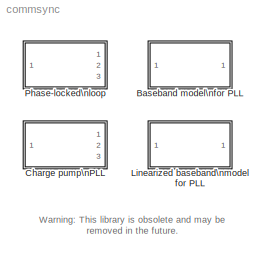
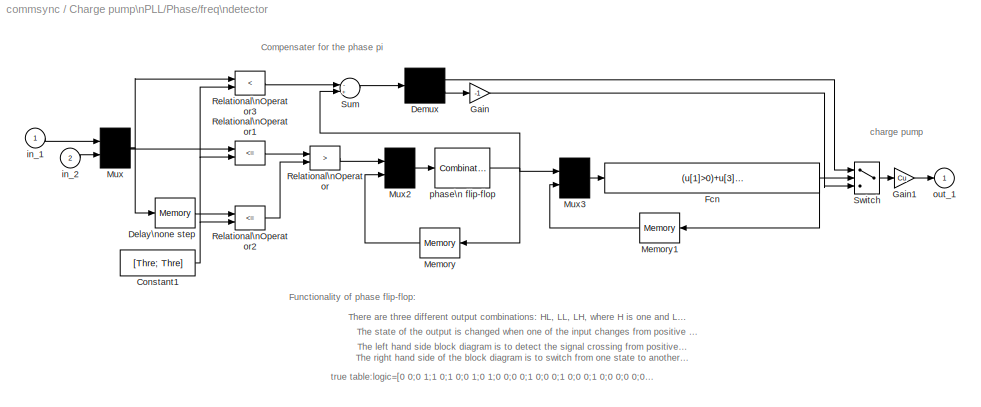
MODEL commsync
KIND library
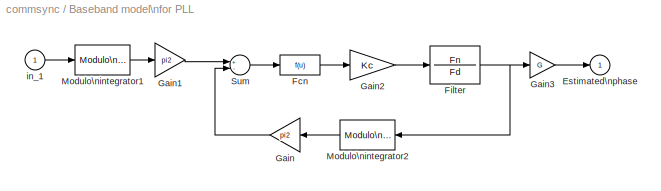
BLOCK [SubSystem] Baseband model\nfor PLL
  MaskCallbackString = |||
  MaskDescription = Output the phase shifting of the input signal from the oscillation frequency.
  MaskDisplay = disp('Baseband\\nPLL')
  MaskEnableString = on,on,on,on
  MaskHelp = this block is used to detect the phase shifting of the input signal. The input to this block is an oscillation signal with possible phase shifting. The block detects the phase shifting value using the PLL technique. Design the lowpass filter to pass the phase changing signal and to eliminate the oscillation signal.
  MaskIconFrame = on
  MaskIconOpaque = on
  MaskIconRotate = none
  MaskIconUnits = autoscale
  MaskInitialization = pi2=2*pi;Kc=Ac/2;
  MaskPromptString = Lowpass filter numerator:|Lowpass filter denominator:|Oscillation amplitude:|Gain at the output:
  MaskStyleString = edit,edit,edit,edit
  MaskToolTipString = on,on,on,on
  MaskTunableValueString = on,on,on,on
  MaskType = Baseband PLL model
  MaskValueString = [3.0002,  0, 40002]|[1, 67.46, 2270.9, 40002]|1|2
  MaskVarAliasString = ,,,
  MaskVariables = Fn=@1;Fd=@2;Ac=@3;G=@4;
  MaskVisibilityString = on,on,on,on
  Ports = [1, 1]
  TreatAsAtomicUnit = off
BLOCK [Outport] Baseband model\nfor PLL/Estimated\nphase
  InitialOutput = 0
BLOCK [Fcn] Baseband model\nfor PLL/Fcn
BLOCK [TransferFcn] Baseband model\nfor PLL/Filter
  Denominator = Fd
  Numerator = Fn
BLOCK [Gain] Baseband model\nfor PLL/Gain
  Gain = pi2
  MaskIconFrame = on
  MaskIconOpaque = on
  MaskIconRotate = none
  MaskIconUnits = autoscale
BLOCK [Gain] Baseband model\nfor PLL/Gain1
  Gain = pi2
BLOCK [Gain] Baseband model\nfor PLL/Gain2
  Gain = Kc
BLOCK [Gain] Baseband model\nfor PLL/Gain3
  Gain = G
BLOCK [Reference] Baseband model\nfor PLL/Modulo\nintegrator1  REF=commutil/Modulo\nintegrator
  Ports = [1, 1]
  SourceBlock = commutil/Modulo\nintegrator
  SourceType = Modulo integrator
  init = 0
  modu = 1
BLOCK [Reference] Baseband model\nfor PLL/Modulo\nintegrator2  REF=commutil/Modulo\nintegrator
  Ports = [1, 1]
  SourceBlock = commutil/Modulo\nintegrator
  SourceType = Modulo integrator
  init = 0
  modu = 1
BLOCK [Sum] Baseband model\nfor PLL/Sum
  Inputs = +-
  Ports = [2, 1]
BLOCK [Inport] Baseband model\nfor PLL/in_1
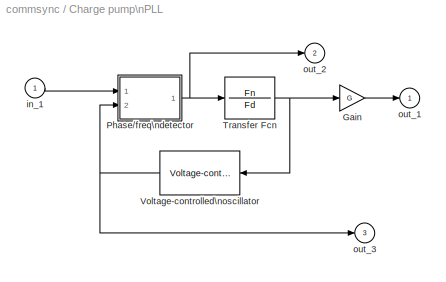
BLOCK [SubSystem] Charge pump\nPLL
  MaskCallbackString = |||||
  MaskDescription = Output the phase shifting signal at 1st port; the detected phase error at 2nd port; VOC output at 3rd port.
  MaskDisplay = disp('Charge\\npump\\nPLL')
  MaskEnableString = on,on,on,on,on,on
  MaskHelp = This block uses a digital charge pump to detect the phase shifting from the oscillation signal. The first output is the detected phase shift. The second output is the detected phase error output from phase detector. The third output is the matching signal for the input. Note a 180 degree phase difference between the input signal and the matching signal.
  MaskIconFrame = on
  MaskIconOpaque = on
  MaskIconRotate = none
  MaskIconUnits = autoscale
  MaskInitialization = Cu=1;
  MaskPromptString = Lowpass filter numerator:|Lowpass filter Denominator:|Oscillation frequency (Hz):|Oscillation Phase (rad):|Oscillation Amplitude:|Gain at the output:
  MaskStyleString = edit,edit,edit,edit,edit,edit
  MaskToolTipString = on,on,on,on,on,on
  MaskTunableValueString = on,on,on,on,on,on
  MaskType = Charge pump PLL
  MaskValueString = [3.0002,  0, 40002]|[1, 67.46, 2270.9, 40002]|100/2/pi|pi|1|3
  MaskVarAliasString = ,,,,,
  MaskVariables = Fn=@1;Fd=@2;Fc=@3;Ph=@4;Ac=@5;G=@6;
  MaskVisibilityString = on,on,on,on,on,on
  Ports = [1, 3]
  TreatAsAtomicUnit = off
BLOCK [Gain] Charge pump\nPLL/Gain
  Gain = G
BLOCK [SubSystem] Charge pump\nPLL/Phase//freq\ndetector
  MaskCallbackString = |
  MaskDescription = Phase detector:
  MaskDisplay = disp('Phase\\nfrequency\\ndetector')
  MaskEnableString = on,on
  MaskIconFrame = on
  MaskIconOpaque = on
  MaskIconRotate = none
  MaskIconUnits = autoscale
  MaskInitialization = Thre=@1;Cu=@2;lo=[0 0;0 1;1 0;1 0;0 1;0 1;0 0;0 0;1 0;0 0;1 0;0 0;1 0;0 0;0 0;0 0];
  MaskPromptString = Cross zero line threshold:|Charge pump current:
  MaskStyleString = edit,edit
  MaskToolTipString = on,on
  MaskTunableValueString = on,on
  MaskType = Phase Detector
  MaskValueString = -sqrt(eps)|Cu
  MaskVarAliasString = ,
  MaskVisibilityString = on,on
  Ports = [2, 1]
  TreatAsAtomicUnit = off
BLOCK [Constant] Charge pump\nPLL/Phase//freq\ndetector/Constant1
  Value = [Thre; Thre]
BLOCK [Memory] Charge pump\nPLL/Phase//freq\ndetector/Delay\none step
BLOCK [Demux] Charge pump\nPLL/Phase//freq\ndetector/Demux
  Outputs = 2
  Ports = [1, 2]
BLOCK [Fcn] Charge pump\nPLL/Phase//freq\ndetector/Fcn
  Expr = (u[1]>0)+u[3]*((u[1]<=0)&&(u[2]<=0))
BLOCK [Gain] Charge pump\nPLL/Phase//freq\ndetector/Gain
  Gain = -1
BLOCK [Gain] Charge pump\nPLL/Phase//freq\ndetector/Gain1
  Gain = Cu
BLOCK [Memory] Charge pump\nPLL/Phase//freq\ndetector/Memory
  MaskIconFrame = on
  MaskIconOpaque = on
  MaskIconRotate = none
  MaskIconUnits = autoscale
BLOCK [Memory] Charge pump\nPLL/Phase//freq\ndetector/Memory1
  MaskIconFrame = on
  MaskIconOpaque = on
  MaskIconRotate = none
  MaskIconUnits = autoscale
BLOCK [Mux] Charge pump\nPLL/Phase//freq\ndetector/Mux
  Inputs = 2
  Ports = [2, 1]
BLOCK [Mux] Charge pump\nPLL/Phase//freq\ndetector/Mux2
  Inputs = [2 2]
  Ports = [2, 1]
BLOCK [Mux] Charge pump\nPLL/Phase//freq\ndetector/Mux3
  Inputs = [2 1]
  Ports = [2, 1]
BLOCK [RelationalOperator] Charge pump\nPLL/Phase//freq\ndetector/Relational\nOperator
  Operator = >
BLOCK [RelationalOperator] Charge pump\nPLL/Phase//freq\ndetector/Relational\nOperator1
  Operator = <=
BLOCK [RelationalOperator] Charge pump\nPLL/Phase//freq\ndetector/Relational\nOperator2
  Operator = <=
BLOCK [RelationalOperator] Charge pump\nPLL/Phase//freq\ndetector/Relational\nOperator3
  Operator = <
BLOCK [Sum] Charge pump\nPLL/Phase//freq\ndetector/Sum
  Inputs = -+
  Ports = [2, 1]
BLOCK [Switch] Charge pump\nPLL/Phase//freq\ndetector/Switch
  Threshold = eps
BLOCK [Inport] Charge pump\nPLL/Phase//freq\ndetector/in_1
BLOCK [Inport] Charge pump\nPLL/Phase//freq\ndetector/in_2
  Port = 2
BLOCK [Outport] Charge pump\nPLL/Phase//freq\ndetector/out_1
  InitialOutput = 0
BLOCK [CombinatorialLogic] Charge pump\nPLL/Phase//freq\ndetector/phase\n flip-flop
  TruthTable = lo
BLOCK [TransferFcn] Charge pump\nPLL/Transfer Fcn
  Denominator = Fd
  Numerator = Fn
BLOCK [Reference] Charge pump\nPLL/Voltage-controlled\noscillator  REF=commutil/Voltage-controlled\noscillator
  Ac = Ac
  Fc = Fc
  Kc = 1
  Ph = Ph
  Ports = [1, 1]
  SourceBlock = commutil/Voltage-controlled\noscillator
  SourceType = Voltage-controlled oscillator
BLOCK [Inport] Charge pump\nPLL/in_1
BLOCK [Outport] Charge pump\nPLL/out_1
  InitialOutput = 0
BLOCK [Outport] Charge pump\nPLL/out_2
  InitialOutput = 0
  Port = 2
BLOCK [Outport] Charge pump\nPLL/out_3
  InitialOutput = 0
  Port = 3
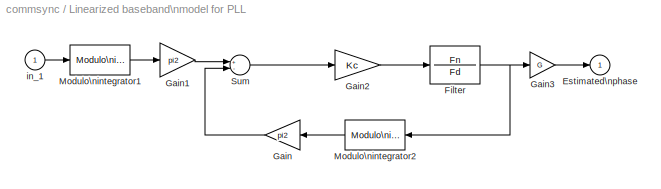
BLOCK [SubSystem] Linearized baseband\nmodel for PLL
  MaskCallbackString = |||
  MaskDescription = Output the phase shifting of the input signal from the oscillation frequency.
  MaskDisplay = disp('Linearized\\nbaseband\\nPLL')
  MaskEnableString = on,on,on,on
  MaskHelp = This block detects the phase shifting of the input signal. The input to this block is an oscillation signal with possible phase shifting. The block detects the phase shifting value using PLL technique. Design the lowpass filter to pass the phase changing signal and to eliminate the oscillation signal.
  MaskIconFrame = on
  MaskIconOpaque = on
  MaskIconRotate = none
  MaskIconUnits = autoscale
  MaskInitialization = pi2=2*pi;Kc=Ac/2;
  MaskPromptString = Lowpass filter numerator:|Lowpass filter denominator:|Oscillation amplitude:|Gain at the output:
  MaskStyleString = edit,edit,edit,edit
  MaskToolTipString = on,on,on,on
  MaskTunableValueString = on,on,on,on
  MaskType = Linearized baseband PLL model
  MaskValueString = [3.0002,  0, 40002]|[1, 67.46, 2270.9, 40002]|1|2
  MaskVarAliasString = ,,,
  MaskVariables = Fn=@1;Fd=@2;Ac=@3;G=@4;
  MaskVisibilityString = on,on,on,on
  Ports = [1, 1]
  TreatAsAtomicUnit = off
BLOCK [Outport] Linearized baseband\nmodel for PLL/Estimated\nphase
  InitialOutput = 0
BLOCK [TransferFcn] Linearized baseband\nmodel for PLL/Filter
  Denominator = Fd
  Numerator = Fn
BLOCK [Gain] Linearized baseband\nmodel for PLL/Gain
  Gain = pi2
  MaskIconFrame = on
  MaskIconOpaque = on
  MaskIconRotate = none
  MaskIconUnits = autoscale
BLOCK [Gain] Linearized baseband\nmodel for PLL/Gain1
  Gain = pi2
BLOCK [Gain] Linearized baseband\nmodel for PLL/Gain2
  Gain = Kc
BLOCK [Gain] Linearized baseband\nmodel for PLL/Gain3
  Gain = G
BLOCK [Reference] Linearized baseband\nmodel for PLL/Modulo\nintegrator1  REF=commutil/Modulo\nintegrator
  Ports = [1, 1]
  SourceBlock = commutil/Modulo\nintegrator
  SourceType = Modulo integrator
  init = 0
  modu = 1
BLOCK [Reference] Linearized baseband\nmodel for PLL/Modulo\nintegrator2  REF=commutil/Modulo\nintegrator
  Ports = [1, 1]
  SourceBlock = commutil/Modulo\nintegrator
  SourceType = Modulo integrator
  init = 0
  modu = 1
BLOCK [Sum] Linearized baseband\nmodel for PLL/Sum
  Inputs = +-
  Ports = [2, 1]
BLOCK [Inport] Linearized baseband\nmodel for PLL/in_1
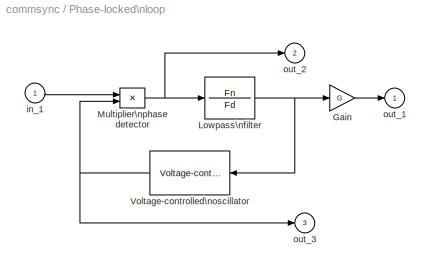
BLOCK [SubSystem] Phase-locked\nloop
  MaskCallbackString = |||||
  MaskDescription = Output the phase shifting signal at 1st port; the detected phase error at 2nd port; VOC output at 3rd port.
  MaskDisplay = disp('PLL')
  MaskEnableString = on,on,on,on,on,on
  MaskHelp = This block detects the phase shifting of the input signal. This block uses a multiplier phase detector. The first output is the detected phase shift. The second output is the detected phase error output from phase detector. The third output is the matching signal for the input. Note a 180 degree phase difference between the input signal and the matching signal.
  MaskIconFrame = on
  MaskIconOpaque = on
  MaskIconRotate = none
  MaskIconUnits = autoscale
  MaskPromptString = Lowpass filter numerator:|Lowpass filter denominator:|Oscillation frequency:|Oscillation Phase:|Oscillation Amplitude:|Gain at the output:
  MaskStyleString = edit,edit,edit,edit,edit,edit
  MaskToolTipString = on,on,on,on,on,on
  MaskTunableValueString = on,on,on,on,on,on
  MaskType = Simple form PLL
  MaskValueString = [3.0002,  0, 40002]|[1, 67.46, 2270.9, 40002]|100/2/pi|pi/2|1|2
  MaskVarAliasString = ,,,,,
  MaskVariables = Fn=@1;Fd=@2;Fc=@3;Ph=@4;Ac=@5;G=@6;
  MaskVisibilityString = on,on,on,on,on,on
  Ports = [1, 3]
  TreatAsAtomicUnit = off
BLOCK [Gain] Phase-locked\nloop/Gain
  Gain = G
BLOCK [TransferFcn] Phase-locked\nloop/Lowpass\nfilter
  Denominator = Fd
  Numerator = Fn
BLOCK [Product] Phase-locked\nloop/Multiplier\nphase detector
  Ports = [2, 1]
BLOCK [Reference] Phase-locked\nloop/Voltage-controlled\noscillator  REF=commutil/Voltage-controlled\noscillator
  Ac = Ac
  Fc = Fc
  Kc = 1
  Ph = Ph
  Ports = [1, 1]
  SourceBlock = commutil/Voltage-controlled\noscillator
  SourceType = Voltage-controlled oscillator
BLOCK [Inport] Phase-locked\nloop/in_1
BLOCK [Outport] Phase-locked\nloop/out_1
  InitialOutput = 0
BLOCK [Outport] Phase-locked\nloop/out_2
  InitialOutput = 0
  Port = 2
BLOCK [Outport] Phase-locked\nloop/out_3
  InitialOutput = 0
  Port = 3
ANNOTATION (root): Warning: This library is obsolete and may be\nremoved in the future.
ANNOTATION Charge pump\nPLL/Phase//freq\ndetector: Compensater for the phase pi
ANNOTATION Charge pump\nPLL/Phase//freq\ndetector: Functionality of phase flip-flop:
ANNOTATION Charge pump\nPLL/Phase//freq\ndetector: The left hand side block diagram is to detect the signal crossing from positive to negative.\nThe right hand side of the block diagram is to switch from one state to another.
ANNOTATION Charge pump\nPLL/Phase//freq\ndetector: The state of the output is changed when one of the input changes from positive to negative.
ANNOTATION Charge pump\nPLL/Phase//freq\ndetector: There are three different output combinations: HL, LL, LH, where H is one and L is zero.
ANNOTATION Charge pump\nPLL/Phase//freq\ndetector: charge pump
ANNOTATION Charge pump\nPLL/Phase//freq\ndetector: true table:logic=[0 0;0 1;1 0;1 0;0 1;0 1;0 0;0 0;1 0;0 0;1 0;0 0;1 0;0 0;0 0;0 0]
LINE Baseband model\nfor PLL/Fcn:1 -> Baseband model\nfor PLL/Gain2:1
NET Baseband model\nfor PLL/Filter:1 -> Baseband model\nfor PLL/Gain3:1, Baseband model\nfor PLL/Modulo\nintegrator2:1
LINE Baseband model\nfor PLL/Gain1:1 -> Baseband model\nfor PLL/Sum:1
LINE Baseband model\nfor PLL/Gain2:1 -> Baseband model\nfor PLL/Filter:1
LINE Baseband model\nfor PLL/Gain3:1 -> Baseband model\nfor PLL/Estimated\nphase:1
LINE Baseband model\nfor PLL/Gain:1 -> Baseband model\nfor PLL/Sum:2
LINE Baseband model\nfor PLL/Modulo\nintegrator1:1 -> Baseband model\nfor PLL/Gain1:1
LINE Baseband model\nfor PLL/Modulo\nintegrator2:1 -> Baseband model\nfor PLL/Gain:1
LINE Baseband model\nfor PLL/Sum:1 -> Baseband model\nfor PLL/Fcn:1
LINE Baseband model\nfor PLL/in_1:1 -> Baseband model\nfor PLL/Modulo\nintegrator1:1
LINE Charge pump\nPLL/Gain:1 -> Charge pump\nPLL/out_1:1
NET Charge pump\nPLL/Phase//freq\ndetector/Constant1:1 -> Charge pump\nPLL/Phase//freq\ndetector/Relational\nOperator1:2, Charge pump\nPLL/Phase//freq\ndetector/Relational\nOperator2:2, Charge pump\nPLL/Phase//freq\ndetector/Relational\nOperator3:2
LINE Charge pump\nPLL/Phase//freq\ndetector/Delay\none step:1 -> Charge pump\nPLL/Phase//freq\ndetector/Relational\nOperator2:1
LINE Charge pump\nPLL/Phase//freq\ndetector/Demux:1 -> Charge pump\nPLL/Phase//freq\ndetector/Switch:1
LINE Charge pump\nPLL/Phase//freq\ndetector/Demux:2 -> Charge pump\nPLL/Phase//freq\ndetector/Gain:1
NET Charge pump\nPLL/Phase//freq\ndetector/Fcn:1 -> Charge pump\nPLL/Phase//freq\ndetector/Memory1:1, Charge pump\nPLL/Phase//freq\ndetector/Switch:2
LINE Charge pump\nPLL/Phase//freq\ndetector/Gain1:1 -> Charge pump\nPLL/Phase//freq\ndetector/out_1:1
LINE Charge pump\nPLL/Phase//freq\ndetector/Gain:1 -> Charge pump\nPLL/Phase//freq\ndetector/Switch:3
LINE Charge pump\nPLL/Phase//freq\ndetector/Memory1:1 -> Charge pump\nPLL/Phase//freq\ndetector/Mux3:2
LINE Charge pump\nPLL/Phase//freq\ndetector/Memory:1 -> Charge pump\nPLL/Phase//freq\ndetector/Mux2:2
LINE Charge pump\nPLL/Phase//freq\ndetector/Mux2:1 -> Charge pump\nPLL/Phase//freq\ndetector/phase\n flip-flop:1
LINE Charge pump\nPLL/Phase//freq\ndetector/Mux3:1 -> Charge pump\nPLL/Phase//freq\ndetector/Fcn:1
NET Charge pump\nPLL/Phase//freq\ndetector/Mux:1 -> Charge pump\nPLL/Phase//freq\ndetector/Delay\none step:1, Charge pump\nPLL/Phase//freq\ndetector/Relational\nOperator1:1, Charge pump\nPLL/Phase//freq\ndetector/Relational\nOperator3:1
LINE Charge pump\nPLL/Phase//freq\ndetector/Relational\nOperator1:1 -> Charge pump\nPLL/Phase//freq\ndetector/Relational\nOperator:1
LINE Charge pump\nPLL/Phase//freq\ndetector/Relational\nOperator2:1 -> Charge pump\nPLL/Phase//freq\ndetector/Relational\nOperator:2
LINE Charge pump\nPLL/Phase//freq\ndetector/Relational\nOperator3:1 -> Charge pump\nPLL/Phase//freq\ndetector/Sum:1
LINE Charge pump\nPLL/Phase//freq\ndetector/Relational\nOperator:1 -> Charge pump\nPLL/Phase//freq\ndetector/Mux2:1
LINE Charge pump\nPLL/Phase//freq\ndetector/Sum:1 -> Charge pump\nPLL/Phase//freq\ndetector/Demux:1
LINE Charge pump\nPLL/Phase//freq\ndetector/Switch:1 -> Charge pump\nPLL/Phase//freq\ndetector/Gain1:1
LINE Charge pump\nPLL/Phase//freq\ndetector/in_1:1 -> Charge pump\nPLL/Phase//freq\ndetector/Mux:1
LINE Charge pump\nPLL/Phase//freq\ndetector/in_2:1 -> Charge pump\nPLL/Phase//freq\ndetector/Mux:2
NET Charge pump\nPLL/Phase//freq\ndetector/phase\n flip-flop:1 -> Charge pump\nPLL/Phase//freq\ndetector/Memory:1, Charge pump\nPLL/Phase//freq\ndetector/Mux3:1, Charge pump\nPLL/Phase//freq\ndetector/Sum:2
NET Charge pump\nPLL/Phase//freq\ndetector:1 -> Charge pump\nPLL/Transfer Fcn:1, Charge pump\nPLL/out_2:1
NET Charge pump\nPLL/Transfer Fcn:1 -> Charge pump\nPLL/Gain:1, Charge pump\nPLL/Voltage-controlled\noscillator:1
NET Charge pump\nPLL/Voltage-controlled\noscillator:1 -> Charge pump\nPLL/Phase//freq\ndetector:2, Charge pump\nPLL/out_3:1
LINE Charge pump\nPLL/in_1:1 -> Charge pump\nPLL/Phase//freq\ndetector:1
NET Linearized baseband\nmodel for PLL/Filter:1 -> Linearized baseband\nmodel for PLL/Gain3:1, Linearized baseband\nmodel for PLL/Modulo\nintegrator2:1
LINE Linearized baseband\nmodel for PLL/Gain1:1 -> Linearized baseband\nmodel for PLL/Sum:1
LINE Linearized baseband\nmodel for PLL/Gain2:1 -> Linearized baseband\nmodel for PLL/Filter:1
LINE Linearized baseband\nmodel for PLL/Gain3:1 -> Linearized baseband\nmodel for PLL/Estimated\nphase:1
LINE Linearized baseband\nmodel for PLL/Gain:1 -> Linearized baseband\nmodel for PLL/Sum:2
LINE Linearized baseband\nmodel for PLL/Modulo\nintegrator1:1 -> Linearized baseband\nmodel for PLL/Gain1:1
LINE Linearized baseband\nmodel for PLL/Modulo\nintegrator2:1 -> Linearized baseband\nmodel for PLL/Gain:1
LINE Linearized baseband\nmodel for PLL/Sum:1 -> Linearized baseband\nmodel for PLL/Gain2:1
LINE Linearized baseband\nmodel for PLL/in_1:1 -> Linearized baseband\nmodel for PLL/Modulo\nintegrator1:1
LINE Phase-locked\nloop/Gain:1 -> Phase-locked\nloop/out_1:1
NET Phase-locked\nloop/Lowpass\nfilter:1 -> Phase-locked\nloop/Gain:1, Phase-locked\nloop/Voltage-controlled\noscillator:1
NET Phase-locked\nloop/Multiplier\nphase detector:1 -> Phase-locked\nloop/Lowpass\nfilter:1, Phase-locked\nloop/out_2:1
NET Phase-locked\nloop/Voltage-controlled\noscillator:1 -> Phase-locked\nloop/Multiplier\nphase detector:2, Phase-locked\nloop/out_3:1
LINE Phase-locked\nloop/in_1:1 -> Phase-locked\nloop/Multiplier\nphase detector:1
note: NET lines group one-source signal fan-out (src -> all destinations, sorted); 1:1 wires keep LINE
